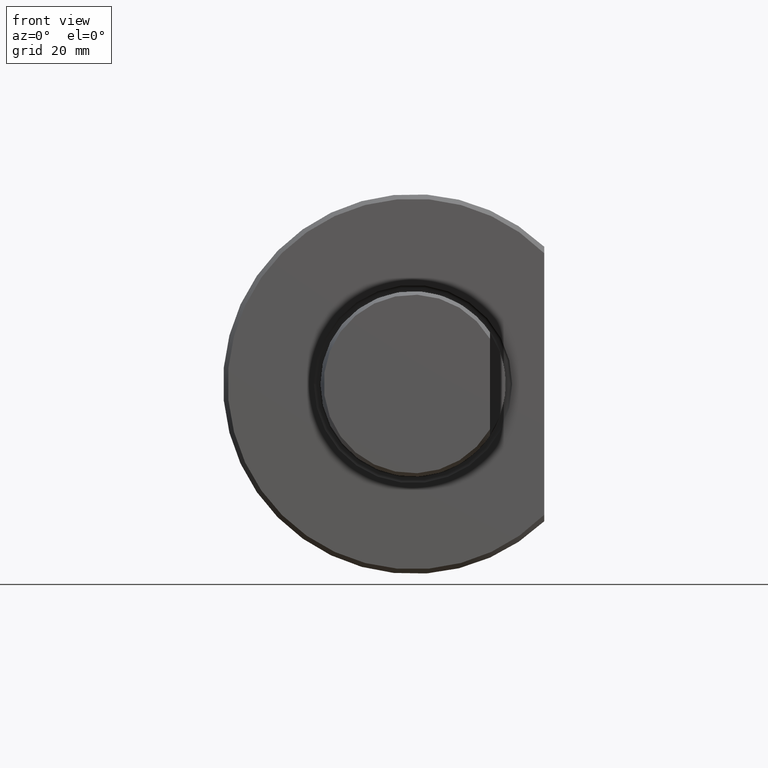
[diagram: clean part render]
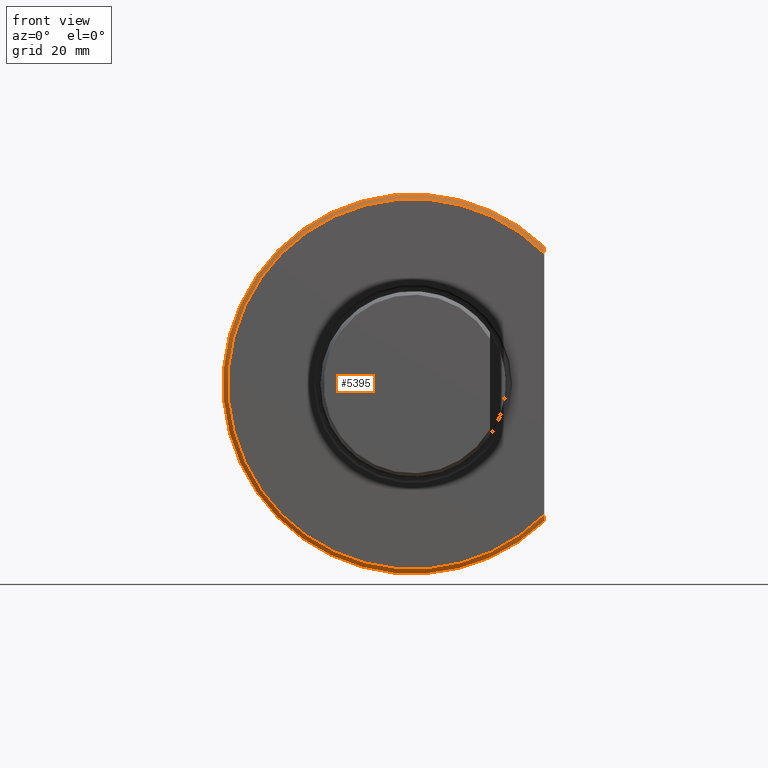
[diagram: same view with one face highlighted and labeled with its STEP entity id]
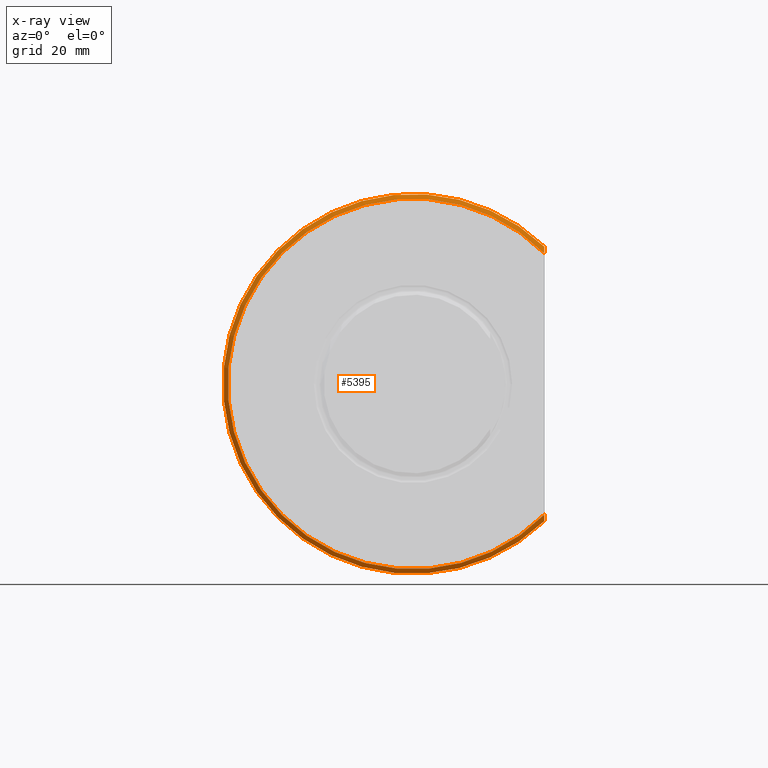
[diagram: x-ray of the same camera — body ghosted, the highlighted face saturated]
A machine part, front view. The second image highlights one B-rep face of the part: STEP entity #5395.
The next image is the same camera in x-ray: the body ghosted, the highlighted face saturated — about 0% of this face is hidden behind the body in this view.
In plain terms, the highlighted conical surface has half-angle 45 deg.
Its self-contained STEP definition (entity closure, byte-faithful):
#947 = EDGE_CURVE ( 'NONE', #11340, #7468, #7149, .T. ) ;
#971 = AXIS2_PLACEMENT_3D ( 'NONE', #9553, #5017, #7511 ) ;
#1050 = DIRECTION ( 'NONE',  ( -1.295371175675670281E-16, 1.000000000000000000, -0.000000000000000000 ) ) ;
#1680 = CARTESIAN_POINT ( 'NONE',  ( 42.50000000000000711, 0.4956550520523327341, 43.05486808853304836 ) ) ;
#1818 = B_SPLINE_CURVE_WITH_KNOTS ( 'NONE', 3,
 ( #4920, #11467, #1680, #6063 ),
 .UNSPECIFIED., .F., .F.,
 ( 4, 4 ),
 ( 1.184489779794245993E-06, 0.002560764092036673083 ),
 .UNSPECIFIED. ) ;
#2101 = CARTESIAN_POINT ( 'NONE',  ( 42.49999999999999289, 9.254589815476564682E-15, -42.35268586524354362 ) ) ;
#2128 = CARTESIAN_POINT ( 'NONE',  ( 42.49999999999999289, 0.4957946406845215037, -43.05506584028741912 ) ) ;
#2954 = ORIENTED_EDGE ( 'NONE', *, *, #11535, .F. ) ;
#3687 = CARTESIAN_POINT ( 'NONE',  ( 42.50000000000000711, 1.281975731971740041E-14, 42.35268586524352941 ) ) ;
#4297 = FACE_OUTER_BOUND ( 'NONE', #10600, .T. ) ;
#4912 = CARTESIAN_POINT ( 'NONE',  ( 42.50000000000000711, 1.499999999999995781, 44.45222154178572538 ) ) ;
#4920 = CARTESIAN_POINT ( 'NONE',  ( 42.50000000000000711, 1.499999999999995781, 44.45222154178572538 ) ) ;
#5017 = DIRECTION ( 'NONE',  ( -1.295371175675670281E-16, 1.000000000000000000, -0.000000000000000000 ) ) ;
#5395 = ADVANCED_FACE ( 'Defeature completata1_10', ( #4297 ), #9738, .T. ) ;
#5438 = CARTESIAN_POINT ( 'NONE',  ( 42.49999999999999289, 9.254589815476564682E-15, -42.35268586524354362 ) ) ;
#5952 = DIRECTION ( 'NONE',  ( -1.295371175675670281E-16, 1.000000000000000000, -0.000000000000000000 ) ) ;
#6063 = CARTESIAN_POINT ( 'NONE',  ( 42.50000000000000711, 1.281975731971740041E-14, 42.35268586524352941 ) ) ;
#6556 = AXIS2_PLACEMENT_3D ( 'NONE', #10851, #1050, #8784 ) ;
#7089 = ORIENTED_EDGE ( 'NONE', *, *, #11288, .F. ) ;
#7149 = CIRCLE ( 'NONE', #971, 61.50000000000000000 ) ;
#7307 = VERTEX_POINT ( 'NONE', #3687 ) ;
#7468 = VERTEX_POINT ( 'NONE', #4912 ) ;
#7511 = DIRECTION ( 'NONE',  ( -1.000000000000000000, -1.304568467706135415E-16, 0.000000000000000000 ) ) ;
#7531 = CARTESIAN_POINT ( 'NONE',  ( 42.49999999999999289, 1.500000000000006439, -44.45222154178573959 ) ) ;
#7876 = EDGE_CURVE ( 'NONE', #12846, #7307, #9455, .T. ) ;
#8335 = CARTESIAN_POINT ( 'NONE',  ( 42.49999999999999289, 1.500000000000006439, -44.45222154178573959 ) ) ;
#8784 = DIRECTION ( 'NONE',  ( -1.000000000000000000, -1.304568467706135415E-16, 0.000000000000000000 ) ) ;
#9151 = CARTESIAN_POINT ( 'NONE',  ( -4.856686337891648901E-31, 3.749262318854966901E-15, 0.000000000000000000 ) ) ;
#9455 = CIRCLE ( 'NONE', #9897, 60.00000000000000000 ) ;
#9553 = CARTESIAN_POINT ( 'NONE',  ( -1.943056763513510352E-16, 1.500000000000003775, 0.000000000000000000 ) ) ;
#9738 = CONICAL_SURFACE ( 'NONE', #6556, 61.50000000000000000, 0.7853981633974487231 ) ;
#9897 = AXIS2_PLACEMENT_3D ( 'NONE', #9151, #5952, #13503 ) ;
#10600 = EDGE_LOOP ( 'NONE', ( #7089, #11501, #2954, #12827 ) ) ;
#10690 = B_SPLINE_CURVE_WITH_KNOTS ( 'NONE', 3,
 ( #5438, #2128, #10722, #7531 ),
 .UNSPECIFIED., .F., .F.,
 ( 4, 4 ),
 ( 0.09460675343373402268, 0.09714162107545640246 ),
 .UNSPECIFIED. ) ;
#10722 = CARTESIAN_POINT ( 'NONE',  ( 42.49999999999999289, 0.9959263589745595002, -43.75483167356679814 ) ) ;
#10851 = CARTESIAN_POINT ( 'NONE',  ( -1.943056763513510352E-16, 1.500000000000003775, 0.000000000000000000 ) ) ;
#11288 = EDGE_CURVE ( 'NONE', #7468, #7307, #1818, .T. ) ;
#11340 = VERTEX_POINT ( 'NONE', #8335 ) ;
#11467 = CARTESIAN_POINT ( 'NONE',  ( 42.50000000000000711, 0.9957888083259246459, 43.75464137115674390 ) ) ;
#11501 = ORIENTED_EDGE ( 'NONE', *, *, #947, .F. ) ;
#11535 = EDGE_CURVE ( 'NONE', #12846, #11340, #10690, .T. ) ;
#12827 = ORIENTED_EDGE ( 'NONE', *, *, #7876, .T. ) ;
#12846 = VERTEX_POINT ( 'NONE', #2101 ) ;
#13503 = DIRECTION ( 'NONE',  ( -1.000000000000000000, -1.295371175675670281E-16, 0.000000000000000000 ) ) ;